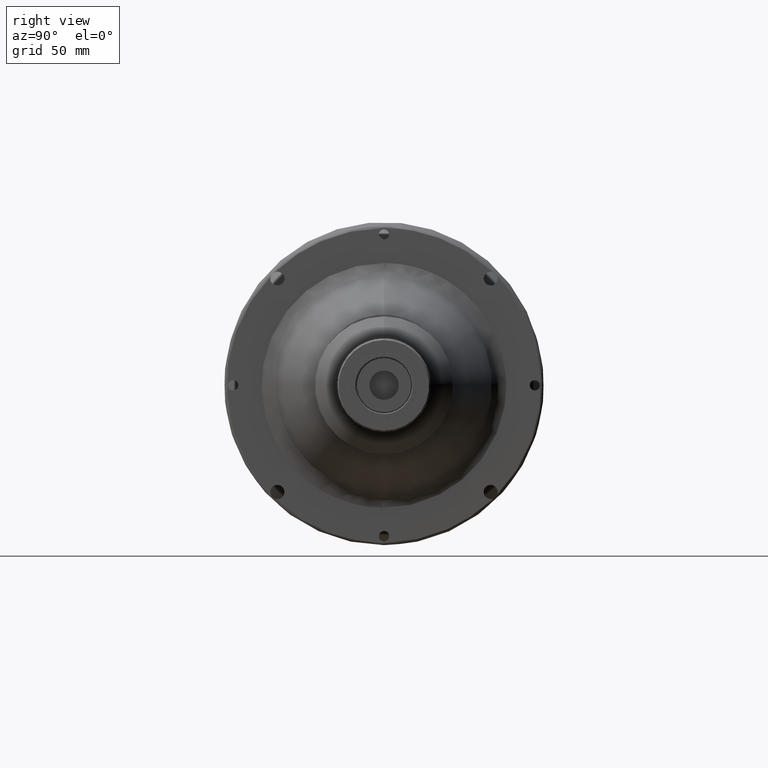
[diagram: clean part render]
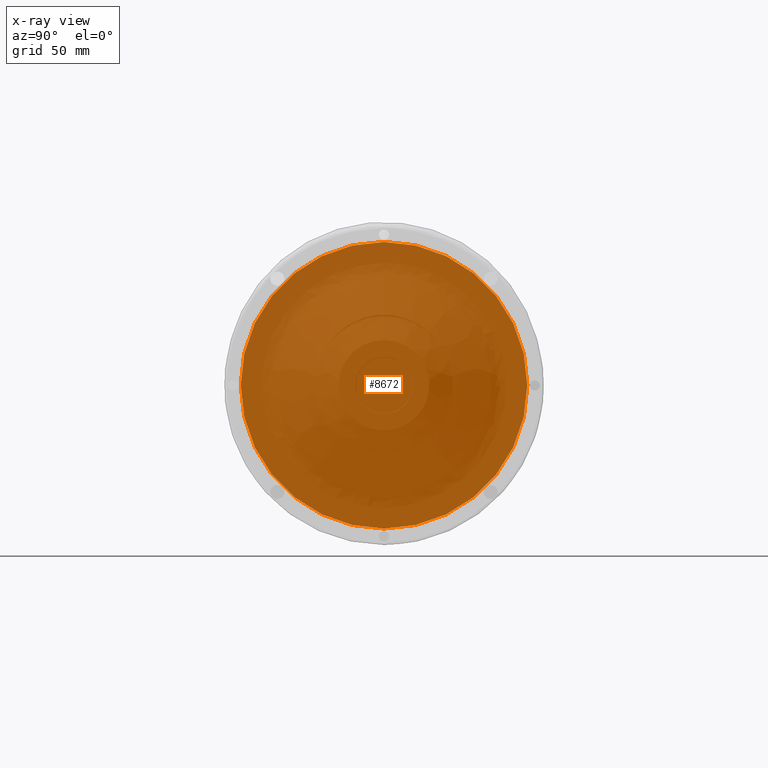
[diagram: x-ray — body ghosted, one internal face saturated and labeled with its STEP entity id]
A machine part, right view, then the same camera in x-ray: the body is ghosted and one INTERNAL B-rep face — a face not visible from any outside direction — is saturated and labeled: STEP entity #8672.
In plain terms, the highlighted planar face has unit normal (1, -0, 0).
Its self-contained STEP definition (entity closure, byte-faithful):
#254 = CARTESIAN_POINT ( 'NONE',  ( -138.8537788450473442, -1.180832890032256157E-13, -57.87500156101632598 ) ) ;
#593 = AXIS2_PLACEMENT_3D ( 'NONE', #15158, #7879, #1936 ) ;
#1279 = DIRECTION ( 'NONE',  ( 1.000000000000000000, -0.000000000000000000, 0.000000000000000000 ) ) ;
#1936 = DIRECTION ( 'NONE',  ( -4.951931421163374912E-16, 1.000000000000000000, 0.000000000000000000 ) ) ;
#2620 = CARTESIAN_POINT ( 'NONE',  ( -138.8537788450473442, -1.180832890032256157E-13, -1.825001560999748307 ) ) ;
#2747 = FACE_OUTER_BOUND ( 'NONE', #16074, .T. ) ;
#2815 = DIRECTION ( 'NONE',  ( -4.951931421163374912E-16, 1.000000000000000000, 0.000000000000000000 ) ) ;
#4202 = DIRECTION ( 'NONE',  ( 1.000000000000000000, 7.258843972773142997E-16, 0.000000000000000000 ) ) ;
#4485 = ORIENTED_EDGE ( 'NONE', *, *, #9604, .T. ) ;
#5310 = CIRCLE ( 'NONE', #593, 56.05000000001655280 ) ;
#5626 = CARTESIAN_POINT ( 'NONE',  ( -138.8537788450000221, -56.72260000000000701, 54.89759843899999936 ) ) ;
#7879 = DIRECTION ( 'NONE',  ( 1.000000000000000000, 7.258843972773142997E-16, 0.000000000000000000 ) ) ;
#7965 = AXIS2_PLACEMENT_3D ( 'NONE', #2620, #4202, #2815 ) ;
#7988 = CARTESIAN_POINT ( 'NONE',  ( -138.8537788450473442, -1.112191436940026798E-13, 54.22499843901683647 ) ) ;
#8590 = PLANE ( 'NONE',  #11410 ) ;
#8672 = ADVANCED_FACE ( 'NONE', ( #2747 ), #8590, .T. ) ;
#8876 = DIRECTION ( 'NONE',  ( 0.000000000000000000, 0.000000000000000000, -1.000000000000000000 ) ) ;
#9383 = ORIENTED_EDGE ( 'NONE', *, *, #12097, .T. ) ;
#9604 = EDGE_CURVE ( 'NONE', #12012, #17576, #5310, .T. ) ;
#11410 = AXIS2_PLACEMENT_3D ( 'NONE', #5626, #1279, #8876 ) ;
#11413 = CIRCLE ( 'NONE', #7965, 56.05000000001655280 ) ;
#12012 = VERTEX_POINT ( 'NONE', #7988 ) ;
#12097 = EDGE_CURVE ( 'NONE', #17576, #12012, #11413, .T. ) ;
#15158 = CARTESIAN_POINT ( 'NONE',  ( -138.8537788450473442, -1.180832890032256157E-13, -1.825001560999748307 ) ) ;
#16074 = EDGE_LOOP ( 'NONE', ( #9383, #4485 ) ) ;
#17576 = VERTEX_POINT ( 'NONE', #254 ) ;